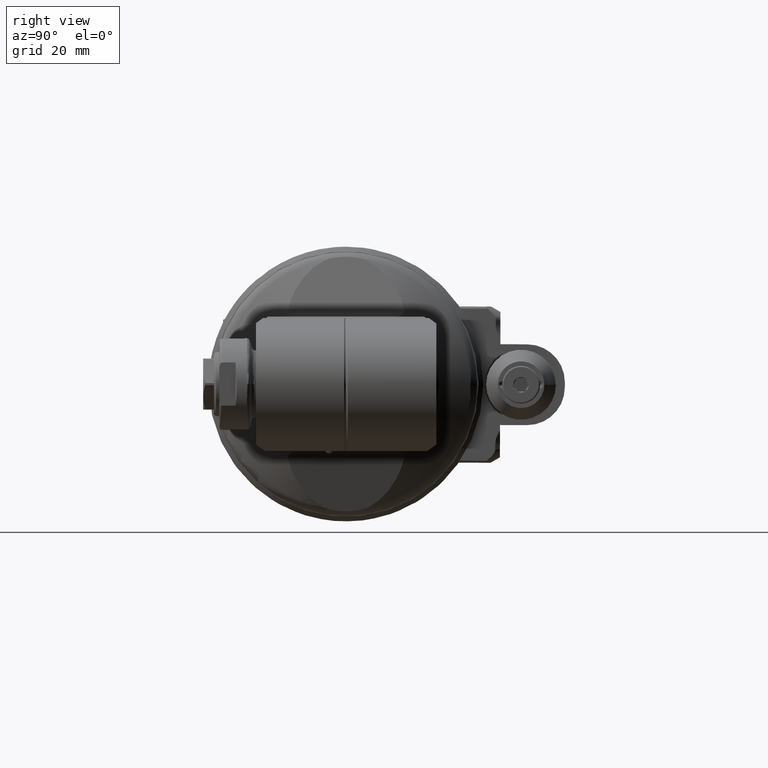
[diagram: clean part render]
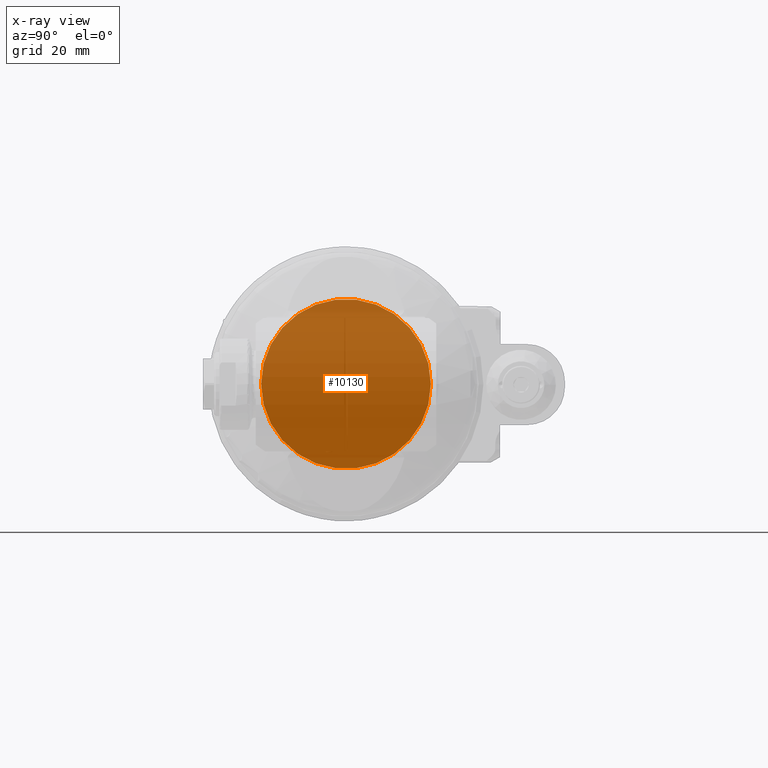
[diagram: x-ray — body ghosted, one internal face saturated and labeled with its STEP entity id]
A machine part, right view, then the same camera in x-ray: the body is ghosted and one INTERNAL B-rep face — a face not visible from any outside direction — is saturated and labeled: STEP entity #10130.
In plain terms, the highlighted planar face has unit normal (1, 0, 0).
Its self-contained STEP definition (entity closure, byte-faithful):
#2242=FACE_OUTER_BOUND('',#2888,.T.);
#2888=EDGE_LOOP('',(#6951));
#3576=CIRCLE('',#11081,31.5);
#4165=VERTEX_POINT('',#15756);
#5231=EDGE_CURVE('',#4165,#4165,#3576,.T.);
#6951=ORIENTED_EDGE('',*,*,#5231,.T.);
#9484=PLANE('',#11082);
#10130=ADVANCED_FACE('',(#2242),#9484,.F.);
#11081=AXIS2_PLACEMENT_3D('',#15758,#12573,#12574);
#11082=AXIS2_PLACEMENT_3D('',#15759,#12575,#12576);
#12573=DIRECTION('center_axis',(-1.,0.,0.));
#12574=DIRECTION('ref_axis',(0.,-1.,0.));
#12575=DIRECTION('center_axis',(1.,0.,0.));
#12576=DIRECTION('ref_axis',(0.,1.,0.));
#15756=CARTESIAN_POINT('',(-28.0000000000011,31.5000000000019,3.8576374173144E-15));
#15758=CARTESIAN_POINT('Origin',(-28.,0.,0.));
#15759=CARTESIAN_POINT('Origin',(-28.,0.,0.));